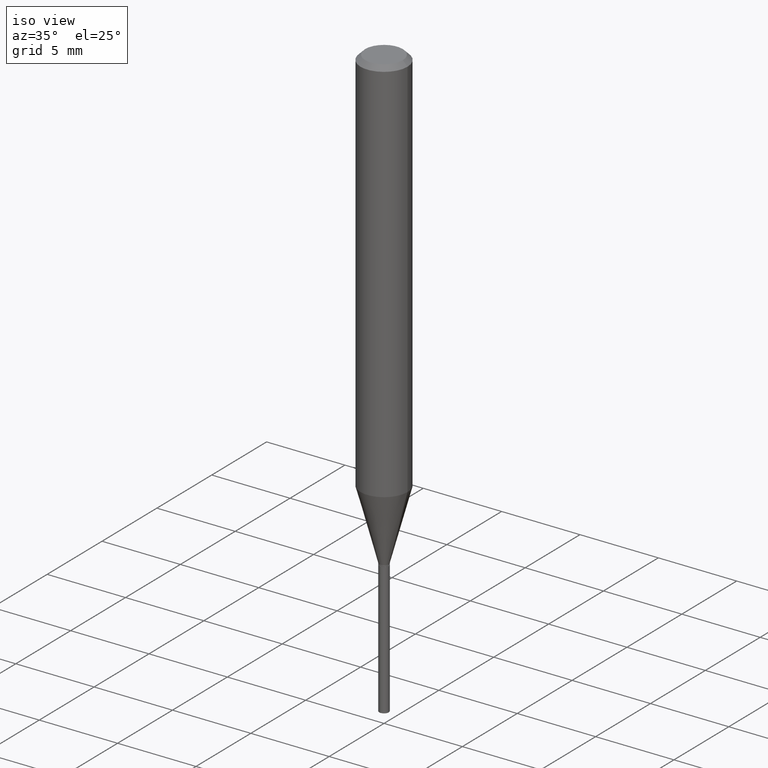
[diagram: clean part render]
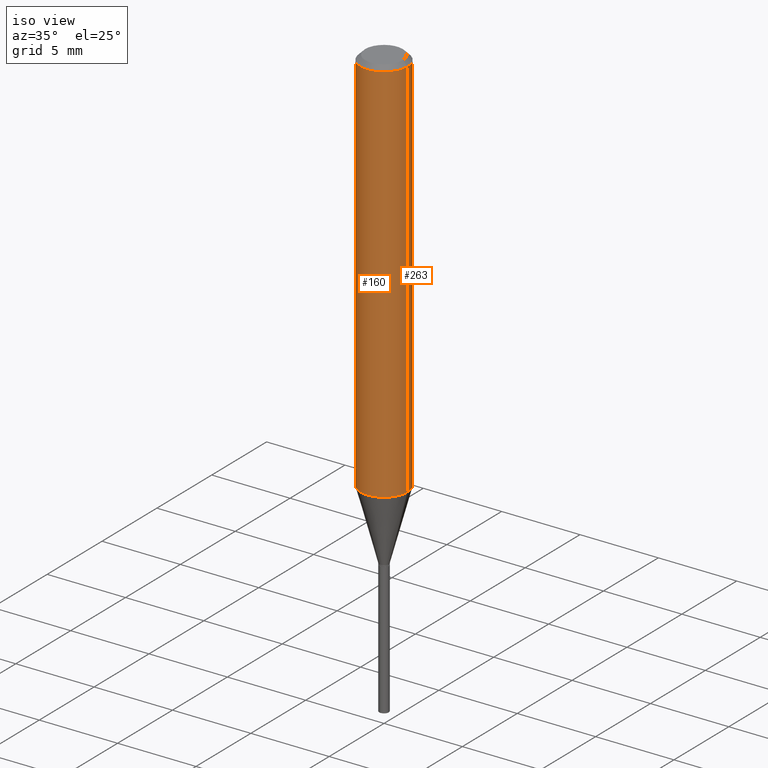
[diagram: same view with one multi-face feature highlighted, each face labeled with its STEP entity id]
A machine part, iso view. The highlighted faces form ONE feature: a constant-radius fillet chain: 2 tangent blend faces with common blend radius 1.4999 mm. The faces share edges in the B-rep.
Their STEP definitions:
[1] entity #263 (Cylinder):
#1 = CYLINDRICAL_SURFACE ( 'NONE', #181, 0.05905000000000006771 ) ;
#21 = ORIENTED_EDGE ( 'NONE', *, *, #144, .T. ) ;
#34 = AXIS2_PLACEMENT_3D ( 'NONE', #451, #217, #220 ) ;
#39 = CARTESIAN_POINT ( 'NONE',  ( 0.000000000000000000, 0.000000000000000000, 0.000000000000000000 ) ) ;
#45 = ORIENTED_EDGE ( 'NONE', *, *, #271, .F. ) ;
#74 = DIRECTION ( 'NONE',  ( -2.445468806185136597E-29, 3.491481338843145583E-15, 1.000000000000000000 ) ) ;
#76 = EDGE_CURVE ( 'NONE', #365, #388, #338, .T. ) ;
#77 = VERTEX_POINT ( 'NONE', #172 ) ;
#85 = EDGE_CURVE ( 'NONE', #417, #388, #89, .T. ) ;
#89 = LINE ( 'NONE', #280, #107 ) ;
#107 = VECTOR ( 'NONE', #236, 39.37007874015748143 ) ;
#113 = LINE ( 'NONE', #119, #332 ) ;
#118 = CIRCLE ( 'NONE', #34, 0.05905000000000013016 ) ;
#119 = CARTESIAN_POINT ( 'NONE',  ( 0.05905000000000006771, -4.123439461173745257E-16, 2.879382386107503723E-30 ) ) ;
#144 = EDGE_CURVE ( 'NONE', #77, #417, #118, .T. ) ;
#167 = CARTESIAN_POINT ( 'NONE',  ( 2.888098660104663328E-31, -4.123439461173779030E-17, -0.01181000000000006871 ) ) ;
#172 = CARTESIAN_POINT ( 'NONE',  ( 0.05905000000000011628, -3.825827684443467023E-15, -0.9776605993423704843 ) ) ;
#181 = AXIS2_PLACEMENT_3D ( 'NONE', #39, #74, #424 ) ;
#191 = DIRECTION ( 'NONE',  ( -2.445468806185136877E-29, 3.491481338843145188E-15, 1.000000000000000000 ) ) ;
#217 = DIRECTION ( 'NONE',  ( -2.445468806185136597E-29, 3.491481338843145583E-15, 1.000000000000000000 ) ) ;
#220 = DIRECTION ( 'NONE',  ( 1.000000000000000000, -6.982962677686265133E-15, 0.000000000000000000 ) ) ;
#236 = DIRECTION ( 'NONE',  ( -2.445468806185136877E-29, 3.491481338843145188E-15, 1.000000000000000000 ) ) ;
#258 = CARTESIAN_POINT ( 'NONE',  ( 0.05904999999999999832, -4.535783407291118600E-16, -0.01181000000000006871 ) ) ;
#263 = ADVANCED_FACE ( 'NONE', ( #406 ), #1, .T. ) ;
#270 = EDGE_LOOP ( 'NONE', ( #21, #394, #461, #45 ) ) ;
#271 = EDGE_CURVE ( 'NONE', #77, #365, #113, .T. ) ;
#278 = DIRECTION ( 'NONE',  ( 1.000000000000000000, -6.982962677686266711E-15, 0.000000000000000000 ) ) ;
#280 = CARTESIAN_POINT ( 'NONE',  ( -0.05905000000000006771, 4.195754854663396409E-16, -2.904631170795525045E-30 ) ) ;
#304 = CARTESIAN_POINT ( 'NONE',  ( -0.05905000000000011628, -2.993908252859751821E-15, -0.9776605993423704843 ) ) ;
#307 = AXIS2_PLACEMENT_3D ( 'NONE', #167, #317, #278 ) ;
#317 = DIRECTION ( 'NONE',  ( -2.445468806185136597E-29, 3.491481338843145583E-15, 1.000000000000000000 ) ) ;
#332 = VECTOR ( 'NONE', #191, 39.37007874015748143 ) ;
#338 = CIRCLE ( 'NONE', #307, 0.05904999999999999832 ) ;
#365 = VERTEX_POINT ( 'NONE', #258 ) ;
#388 = VERTEX_POINT ( 'NONE', #414 ) ;
#394 = ORIENTED_EDGE ( 'NONE', *, *, #85, .T. ) ;
#406 = FACE_OUTER_BOUND ( 'NONE', #270, .T. ) ;
#414 = CARTESIAN_POINT ( 'NONE',  ( -0.05904999999999999832, -1.307783581002574437E-15, -0.01181000000000006871 ) ) ;
#417 = VERTEX_POINT ( 'NONE', #304 ) ;
#424 = DIRECTION ( 'NONE',  ( 1.000000000000000000, -6.982962677686266711E-15, 4.876176775795936353E-29 ) ) ;
#451 = CARTESIAN_POINT ( 'NONE',  ( 2.390838498728031811E-29, -3.413483738326091708E-15, -0.9776605993423704843 ) ) ;
#461 = ORIENTED_EDGE ( 'NONE', *, *, #76, .F. ) ;
[2] entity #160 (Cylinder):
#32 = EDGE_LOOP ( 'NONE', ( #455, #136, #418, #248 ) ) ;
#77 = VERTEX_POINT ( 'NONE', #172 ) ;
#85 = EDGE_CURVE ( 'NONE', #417, #388, #89, .T. ) ;
#87 = AXIS2_PLACEMENT_3D ( 'NONE', #285, #448, #333 ) ;
#89 = LINE ( 'NONE', #280, #107 ) ;
#94 = AXIS2_PLACEMENT_3D ( 'NONE', #409, #185, #177 ) ;
#107 = VECTOR ( 'NONE', #236, 39.37007874015748143 ) ;
#113 = LINE ( 'NONE', #119, #332 ) ;
#119 = CARTESIAN_POINT ( 'NONE',  ( 0.05905000000000006771, -4.123439461173745257E-16, 2.879382386107503723E-30 ) ) ;
#127 = CIRCLE ( 'NONE', #404, 0.05905000000000013016 ) ;
#136 = ORIENTED_EDGE ( 'NONE', *, *, #139, .T. ) ;
#139 = EDGE_CURVE ( 'NONE', #417, #77, #127, .T. ) ;
#160 = ADVANCED_FACE ( 'NONE', ( #247 ), #369, .T. ) ;
#172 = CARTESIAN_POINT ( 'NONE',  ( 0.05905000000000011628, -3.825827684443467023E-15, -0.9776605993423704843 ) ) ;
#177 = DIRECTION ( 'NONE',  ( 1.000000000000000000, -6.982962677686266711E-15, 4.876176775795936353E-29 ) ) ;
#184 = EDGE_CURVE ( 'NONE', #388, #365, #296, .T. ) ;
#185 = DIRECTION ( 'NONE',  ( -2.445468806185136597E-29, 3.491481338843145583E-15, 1.000000000000000000 ) ) ;
#191 = DIRECTION ( 'NONE',  ( -2.445468806185136877E-29, 3.491481338843145188E-15, 1.000000000000000000 ) ) ;
#236 = DIRECTION ( 'NONE',  ( -2.445468806185136877E-29, 3.491481338843145188E-15, 1.000000000000000000 ) ) ;
#247 = FACE_OUTER_BOUND ( 'NONE', #32, .T. ) ;
#248 = ORIENTED_EDGE ( 'NONE', *, *, #184, .F. ) ;
#254 = DIRECTION ( 'NONE',  ( 1.000000000000000000, -6.982962677686265133E-15, 0.000000000000000000 ) ) ;
#258 = CARTESIAN_POINT ( 'NONE',  ( 0.05904999999999999832, -4.535783407291118600E-16, -0.01181000000000006871 ) ) ;
#271 = EDGE_CURVE ( 'NONE', #77, #365, #113, .T. ) ;
#280 = CARTESIAN_POINT ( 'NONE',  ( -0.05905000000000006771, 4.195754854663396409E-16, -2.904631170795525045E-30 ) ) ;
#285 = CARTESIAN_POINT ( 'NONE',  ( 2.888098660104663328E-31, -4.123439461173779030E-17, -0.01181000000000006871 ) ) ;
#296 = CIRCLE ( 'NONE', #87, 0.05904999999999999832 ) ;
#304 = CARTESIAN_POINT ( 'NONE',  ( -0.05905000000000011628, -2.993908252859751821E-15, -0.9776605993423704843 ) ) ;
#332 = VECTOR ( 'NONE', #191, 39.37007874015748143 ) ;
#333 = DIRECTION ( 'NONE',  ( 1.000000000000000000, -6.982962677686266711E-15, 0.000000000000000000 ) ) ;
#365 = VERTEX_POINT ( 'NONE', #258 ) ;
#366 = CARTESIAN_POINT ( 'NONE',  ( 2.390838498728031811E-29, -3.413483738326091708E-15, -0.9776605993423704843 ) ) ;
#369 = CYLINDRICAL_SURFACE ( 'NONE', #94, 0.05905000000000006771 ) ;
#388 = VERTEX_POINT ( 'NONE', #414 ) ;
#404 = AXIS2_PLACEMENT_3D ( 'NONE', #366, #489, #254 ) ;
#409 = CARTESIAN_POINT ( 'NONE',  ( 0.000000000000000000, 0.000000000000000000, 0.000000000000000000 ) ) ;
#414 = CARTESIAN_POINT ( 'NONE',  ( -0.05904999999999999832, -1.307783581002574437E-15, -0.01181000000000006871 ) ) ;
#417 = VERTEX_POINT ( 'NONE', #304 ) ;
#418 = ORIENTED_EDGE ( 'NONE', *, *, #271, .T. ) ;
#448 = DIRECTION ( 'NONE',  ( -2.445468806185136597E-29, 3.491481338843145583E-15, 1.000000000000000000 ) ) ;
#455 = ORIENTED_EDGE ( 'NONE', *, *, #85, .F. ) ;
#489 = DIRECTION ( 'NONE',  ( -2.445468806185136597E-29, 3.491481338843145583E-15, 1.000000000000000000 ) ) ;